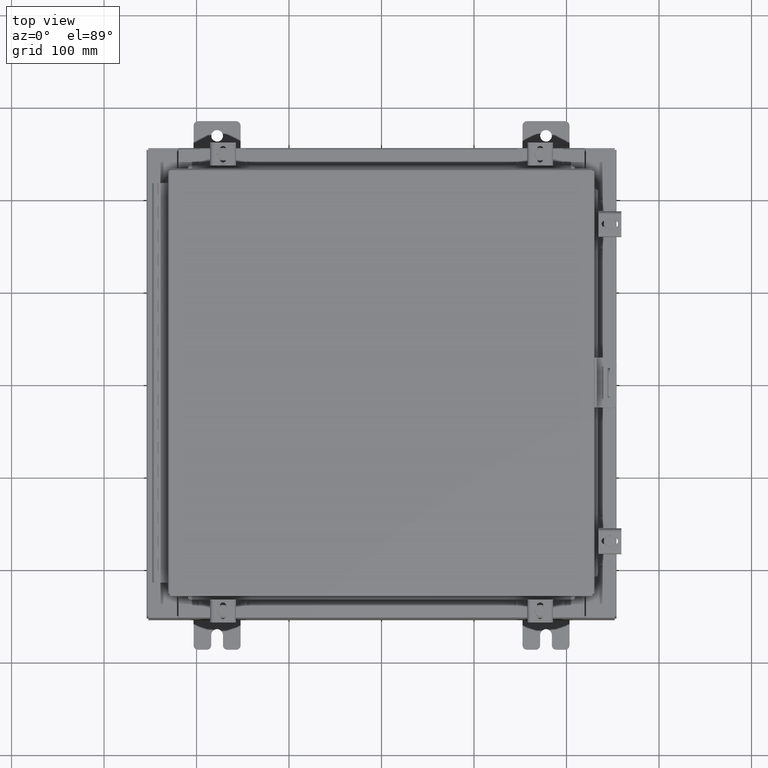
[diagram: clean part render]
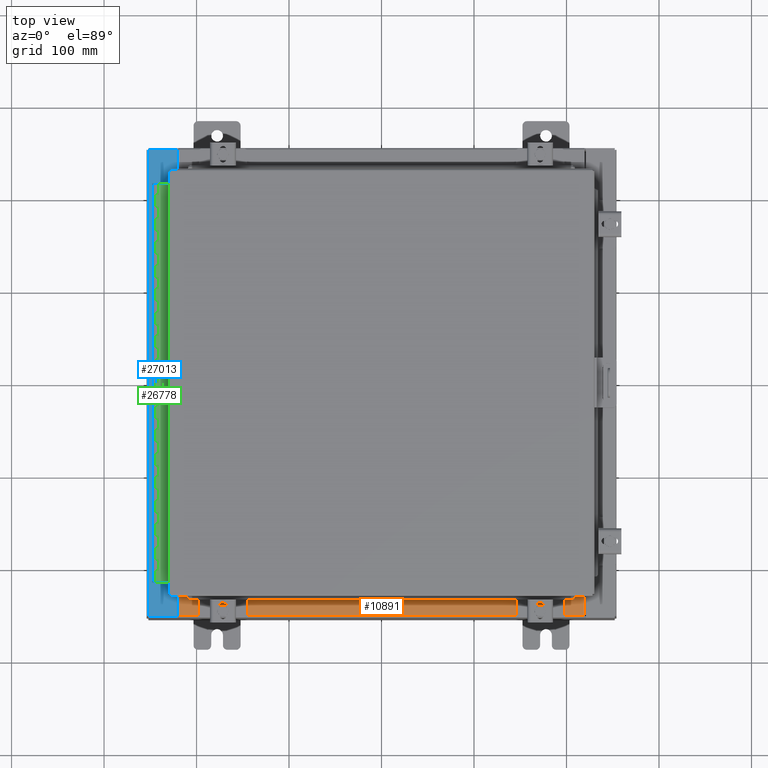
[diagram: same view with three faces highlighted in distinct colors, each labeled with its STEP entity id]
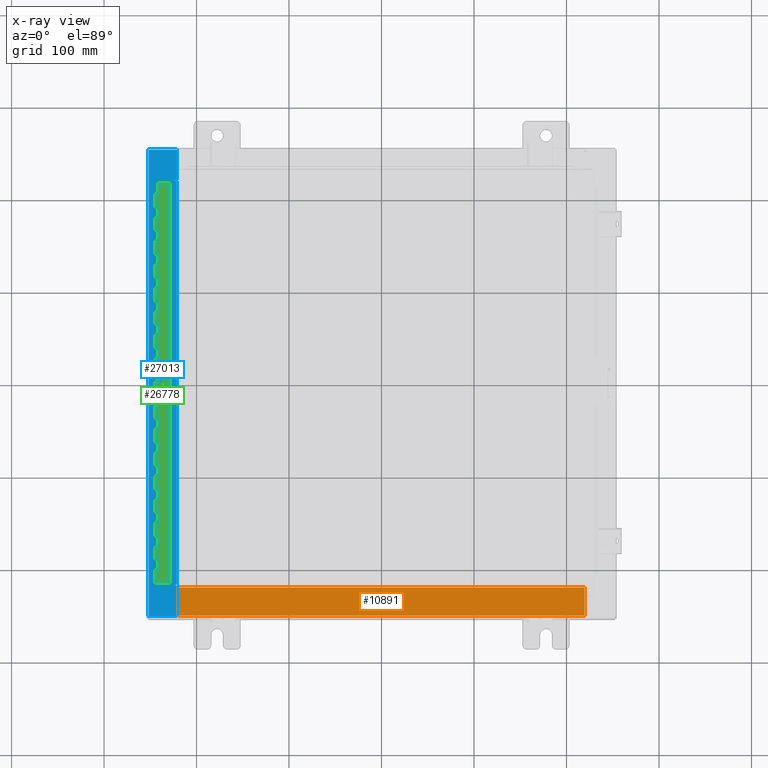
[diagram: x-ray of the same camera — body ghosted, the three highlighted faces saturated]
A machine part, top view with three faces highlighted in distinct colors.
The next image is the same camera in x-ray (body ghosted, the three faces saturated) — at least one of them is partly hidden behind the body in this view.
Their STEP definitions:

[orange] entity #10891 — the highlighted planar face has unit normal (-0, -0, 1).
#488 = CARTESIAN_POINT ( 'NONE',  ( 8.637200000000000000, -1.300299999999999800, 3.000000000000005300 ) ) ;
#3153 = CARTESIAN_POINT ( 'NONE',  ( -8.637200000000000000, -0.07469999999999973900, 3.000000000000000900 ) ) ;
#3319 = VECTOR ( 'NONE', #21054, 39.37007874015748100 ) ;
#3874 = ORIENTED_EDGE ( 'NONE', *, *, #10393, .F. ) ;
#3950 = EDGE_CURVE ( 'NONE', #11097, #27182, #11611, .T. ) ;
#4037 = LINE ( 'NONE', #9670, #3319 ) ;
#4848 = EDGE_CURVE ( 'NONE', #21313, #29233, #9080, .T. ) ;
#4921 = LINE ( 'NONE', #24121, #28433 ) ;
#6597 = EDGE_CURVE ( 'NONE', #21313, #27182, #4037, .T. ) ;
#6669 = ORIENTED_EDGE ( 'NONE', *, *, #3950, .F. ) ;
#6844 = EDGE_LOOP ( 'NONE', ( #6669, #3874, #14587, #9004 ) ) ;
#8499 = CARTESIAN_POINT ( 'NONE',  ( 8.637200000000000000, -1.287299999999999900, 3.000000000000005300 ) ) ;
#9004 = ORIENTED_EDGE ( 'NONE', *, *, #6597, .T. ) ;
#9080 = LINE ( 'NONE', #488, #20524 ) ;
#9670 = CARTESIAN_POINT ( 'NONE',  ( -2.773851121247453900E-018, -0.08770000000000000000, 3.000000000000001300 ) ) ;
#10393 = EDGE_CURVE ( 'NONE', #29233, #11097, #4921, .T. ) ;
#10891 = ADVANCED_FACE ( 'NONE', ( #12158 ), #26395, .T. ) ;
#11004 = CARTESIAN_POINT ( 'NONE',  ( -8.637200000000000000, -1.287299999999999200, 3.000000000000005300 ) ) ;
#11097 = VERTEX_POINT ( 'NONE', #11004 ) ;
#11611 = LINE ( 'NONE', #3153, #29102 ) ;
#12158 = FACE_OUTER_BOUND ( 'NONE', #6844, .T. ) ;
#12718 = DIRECTION ( 'NONE',  ( 0.0000000000000000000, 3.566381192773190000E-015, 1.000000000000000000 ) ) ;
#14587 = ORIENTED_EDGE ( 'NONE', *, *, #4848, .F. ) ;
#14915 = CARTESIAN_POINT ( 'NONE',  ( 0.0000000000000000000, 1.069354855923099900E-014, 3.000000000000000900 ) ) ;
#15032 = DIRECTION ( 'NONE',  ( -1.000000000000000000, 0.0000000000000000000, 0.0000000000000000000 ) ) ;
#20118 = CARTESIAN_POINT ( 'NONE',  ( 8.637200000000000000, -0.08769999999999965300, 3.000000000000000900 ) ) ;
#20524 = VECTOR ( 'NONE', #23396, 39.37007874015748100 ) ;
#21054 = DIRECTION ( 'NONE',  ( -1.000000000000000000, 3.162886113166609200E-017, -1.128005754888089100E-031 ) ) ;
#21085 = DIRECTION ( 'NONE',  ( -0.0000000000000000000, 1.000000000000000000, -3.566381192773190000E-015 ) ) ;
#21313 = VERTEX_POINT ( 'NONE', #20118 ) ;
#22598 = AXIS2_PLACEMENT_3D ( 'NONE', #14915, #12718, #28661 ) ;
#23396 = DIRECTION ( 'NONE',  ( -0.0000000000000000000, -1.000000000000000000, 3.566381192773190000E-015 ) ) ;
#24121 = CARTESIAN_POINT ( 'NONE',  ( 8.637200000000000000, -1.287299999999999900, 3.000000000000005300 ) ) ;
#26395 = PLANE ( 'NONE',  #22598 ) ;
#27182 = VERTEX_POINT ( 'NONE', #27910 ) ;
#27910 = CARTESIAN_POINT ( 'NONE',  ( -8.637200000000000000, -0.08770000000000000000, 3.000000000000000900 ) ) ;
#28433 = VECTOR ( 'NONE', #15032, 39.37007874015748100 ) ;
#28661 = DIRECTION ( 'NONE',  ( 0.0000000000000000000, -1.000000000000000000, 3.566381192773190000E-015 ) ) ;
#29102 = VECTOR ( 'NONE', #21085, 39.37007874015748100 ) ;
#29233 = VERTEX_POINT ( 'NONE', #8499 ) ;

[blue] entity #27013 — the highlighted planar face has unit normal (0, -0, -1).
#164 = LINE ( 'NONE', #26480, #16898 ) ;
#227 = CARTESIAN_POINT ( 'NONE',  ( -8.750050000000023000, 8.631099999999998200, 5.925300000000007100 ) ) ;
#739 = DIRECTION ( 'NONE',  ( -1.000000000000000000, -2.170286390199908100E-014, -2.170286390199908100E-014 ) ) ;
#1042 = ORIENTED_EDGE ( 'NONE', *, *, #2226, .T. ) ;
#1733 = CIRCLE ( 'NONE', #18416, 0.01867499999999949400 ) ;
#1936 = CARTESIAN_POINT ( 'NONE',  ( -8.712700000000021200, 8.593749999999998200, 5.925300000000007100 ) ) ;
#1982 = CARTESIAN_POINT ( 'NONE',  ( -9.912300000000019700, 9.925300000000000000, 5.925299999999999100 ) ) ;
#2073 = DIRECTION ( 'NONE',  ( -7.132762385546365800E-015, 5.504816970095138400E-017, 1.000000000000000000 ) ) ;
#2126 = CARTESIAN_POINT ( 'NONE',  ( -8.699700000000019500, 9.925299999999998200, 5.925300000000008000 ) ) ;
#2226 = EDGE_CURVE ( 'NONE', #9636, #21795, #164, .T. ) ;
#2290 = VECTOR ( 'NONE', #5651, 39.37007874015748100 ) ;
#2324 = CARTESIAN_POINT ( 'NONE',  ( -8.750050000000023000, -8.593750000000008900, 5.925300000000008000 ) ) ;
#2599 = ORIENTED_EDGE ( 'NONE', *, *, #22726, .F. ) ;
#2860 = VECTOR ( 'NONE', #13137, 39.37007874015748100 ) ;
#2977 = VECTOR ( 'NONE', #10549, 39.37007874015748100 ) ;
#3092 = VECTOR ( 'NONE', #24717, 39.37007874015748100 ) ;
#3192 = EDGE_CURVE ( 'NONE', #21795, #22593, #9013, .T. ) ;
#4017 = EDGE_CURVE ( 'NONE', #11386, #24587, #17701, .T. ) ;
#4537 = CARTESIAN_POINT ( 'NONE',  ( -4.252457061908996300E-014, 3.261769199290511000E-016, 5.925300000000070200 ) ) ;
#5270 = EDGE_CURVE ( 'NONE', #9636, #18449, #12641, .T. ) ;
#5651 = DIRECTION ( 'NONE',  ( 1.000000000000000000, -2.170286390199814100E-014, 2.170286390199814100E-014 ) ) ;
#6756 = ORIENTED_EDGE ( 'NONE', *, *, #13893, .F. ) ;
#6827 = DIRECTION ( 'NONE',  ( -1.000000000000000000, 0.0000000000000000000, -7.132762385546365800E-015 ) ) ;
#9013 = LINE ( 'NONE', #28009, #2977 ) ;
#9308 = EDGE_LOOP ( 'NONE', ( #9552, #1042, #15651, #24405, #28764, #28835, #20356, #22474, #14625, #6756, #2599, #23002 ) ) ;
#9552 = ORIENTED_EDGE ( 'NONE', *, *, #5270, .F. ) ;
#9636 = VERTEX_POINT ( 'NONE', #18118 ) ;
#10154 = VECTOR ( 'NONE', #26117, 39.37007874015748100 ) ;
#10422 = LINE ( 'NONE', #13117, #21860 ) ;
#10549 = DIRECTION ( 'NONE',  ( -1.000000000000000000, 3.566381192773190000E-015, -7.132762385546365800E-015 ) ) ;
#11321 = CARTESIAN_POINT ( 'NONE',  ( -8.699700000000017800, -9.925300000000005300, 5.925300000000008000 ) ) ;
#11386 = VERTEX_POINT ( 'NONE', #12216 ) ;
#11537 = CARTESIAN_POINT ( 'NONE',  ( -8.750050000000023000, 8.612424999999998200, 5.925300000000007100 ) ) ;
#11807 = VERTEX_POINT ( 'NONE', #2324 ) ;
#12178 = CARTESIAN_POINT ( 'NONE',  ( -8.712700000000021200, -8.593750000000008900, 5.925300000000007100 ) ) ;
#12216 = CARTESIAN_POINT ( 'NONE',  ( -9.912300000000019700, -9.925299999999992900, 5.925299999999999100 ) ) ;
#12445 = CARTESIAN_POINT ( 'NONE',  ( -8.750050000000023000, 8.593749999999998200, 5.925300000000007100 ) ) ;
#12641 = LINE ( 'NONE', #14683, #17993 ) ;
#12784 = VERTEX_POINT ( 'NONE', #1936 ) ;
#13117 = CARTESIAN_POINT ( 'NONE',  ( -8.699700000000019500, -6.316282039656831500E-016, 5.925300000000008000 ) ) ;
#13137 = DIRECTION ( 'NONE',  ( -0.0000000000000000000, 1.000000000000000000, -5.504816970095139000E-017 ) ) ;
#13833 = DIRECTION ( 'NONE',  ( 1.000000000000000000, 0.0000000000000000000, 0.0000000000000000000 ) ) ;
#13893 = EDGE_CURVE ( 'NONE', #12784, #26984, #21980, .T. ) ;
#14048 = CARTESIAN_POINT ( 'NONE',  ( -8.699700000000017800, -8.631100000000007100, 5.925300000000008000 ) ) ;
#14625 = ORIENTED_EDGE ( 'NONE', *, *, #15754, .F. ) ;
#14683 = CARTESIAN_POINT ( 'NONE',  ( -8.699700000000019500, 8.631100000000000000, 5.925300000000008000 ) ) ;
#14948 = EDGE_CURVE ( 'NONE', #23488, #20281, #19783, .T. ) ;
#15651 = ORIENTED_EDGE ( 'NONE', *, *, #3192, .T. ) ;
#15713 = CARTESIAN_POINT ( 'NONE',  ( -8.750050000000023000, -8.612425000000007100, 5.925300000000007100 ) ) ;
#15754 = EDGE_CURVE ( 'NONE', #26984, #11807, #22579, .T. ) ;
#16226 = LINE ( 'NONE', #12445, #10154 ) ;
#16493 = VECTOR ( 'NONE', #21370, 39.37007874015748100 ) ;
#16898 = VECTOR ( 'NONE', #19743, 39.37007874015748100 ) ;
#17424 = VERTEX_POINT ( 'NONE', #18378 ) ;
#17701 = LINE ( 'NONE', #18288, #22338 ) ;
#17875 = EDGE_CURVE ( 'NONE', #18449, #17424, #20062, .T. ) ;
#17993 = VECTOR ( 'NONE', #739, 39.37007874015748100 ) ;
#18028 = DIRECTION ( 'NONE',  ( 1.000000000000000000, 0.0000000000000000000, 0.0000000000000000000 ) ) ;
#18118 = CARTESIAN_POINT ( 'NONE',  ( -8.699700000000019500, 8.631100000000000000, 5.925300000000008000 ) ) ;
#18165 = PLANE ( 'NONE',  #18561 ) ;
#18288 = CARTESIAN_POINT ( 'NONE',  ( -1.310180787506698800E-013, -9.925300000000083500, 5.925300000000070200 ) ) ;
#18378 = CARTESIAN_POINT ( 'NONE',  ( -8.750050000000023000, 8.593749999999998200, 5.925300000000008000 ) ) ;
#18416 = AXIS2_PLACEMENT_3D ( 'NONE', #15713, #2073, #18028 ) ;
#18449 = VERTEX_POINT ( 'NONE', #227 ) ;
#18561 = AXIS2_PLACEMENT_3D ( 'NONE', #4537, #20481, #6827 ) ;
#18593 = DIRECTION ( 'NONE',  ( 1.000000000000000000, -8.915952981932958000E-015, 7.132762385546365800E-015 ) ) ;
#19282 = CARTESIAN_POINT ( 'NONE',  ( -8.750050000000023000, -8.631100000000008900, 5.925300000000007100 ) ) ;
#19743 = DIRECTION ( 'NONE',  ( -1.100963394019027400E-016, 1.000000000000000000, -5.504816970095217300E-017 ) ) ;
#19759 = FACE_OUTER_BOUND ( 'NONE', #9308, .T. ) ;
#19783 = LINE ( 'NONE', #19282, #2290 ) ;
#19937 = DIRECTION ( 'NONE',  ( -1.100963394019027400E-016, 1.000000000000000000, -5.504816970095217300E-017 ) ) ;
#20062 = CIRCLE ( 'NONE', #27141, 0.01867499999999949400 ) ;
#20281 = VERTEX_POINT ( 'NONE', #14048 ) ;
#20356 = ORIENTED_EDGE ( 'NONE', *, *, #14948, .F. ) ;
#20388 = CARTESIAN_POINT ( 'NONE',  ( -8.712700000000021200, -8.593750000000008900, 5.925300000000007100 ) ) ;
#20481 = DIRECTION ( 'NONE',  ( 7.132762385546365800E-015, -5.504816970095137800E-017, -1.000000000000000000 ) ) ;
#20740 = EDGE_CURVE ( 'NONE', #11807, #23488, #1733, .T. ) ;
#21034 = CARTESIAN_POINT ( 'NONE',  ( -9.912300000000019700, 9.925300000000001800, 5.925299999999999100 ) ) ;
#21052 = LINE ( 'NONE', #1982, #2860 ) ;
#21370 = DIRECTION ( 'NONE',  ( -1.000000000000000000, 0.0000000000000000000, 0.0000000000000000000 ) ) ;
#21795 = VERTEX_POINT ( 'NONE', #2126 ) ;
#21860 = VECTOR ( 'NONE', #19937, 39.37007874015748100 ) ;
#21980 = LINE ( 'NONE', #29181, #3092 ) ;
#22338 = VECTOR ( 'NONE', #18593, 39.37007874015748100 ) ;
#22474 = ORIENTED_EDGE ( 'NONE', *, *, #20740, .F. ) ;
#22579 = LINE ( 'NONE', #12178, #16493 ) ;
#22593 = VERTEX_POINT ( 'NONE', #21034 ) ;
#22726 = EDGE_CURVE ( 'NONE', #17424, #12784, #16226, .T. ) ;
#23002 = ORIENTED_EDGE ( 'NONE', *, *, #17875, .F. ) ;
#23488 = VERTEX_POINT ( 'NONE', #28547 ) ;
#24405 = ORIENTED_EDGE ( 'NONE', *, *, #29332, .F. ) ;
#24480 = EDGE_CURVE ( 'NONE', #24587, #20281, #10422, .T. ) ;
#24587 = VERTEX_POINT ( 'NONE', #11321 ) ;
#24717 = DIRECTION ( 'NONE',  ( -0.0000000000000000000, -1.000000000000000000, -0.0000000000000000000 ) ) ;
#26117 = DIRECTION ( 'NONE',  ( 1.000000000000000000, 0.0000000000000000000, 0.0000000000000000000 ) ) ;
#26480 = CARTESIAN_POINT ( 'NONE',  ( -8.699700000000019500, -6.316282039656831500E-016, 5.925300000000008000 ) ) ;
#26984 = VERTEX_POINT ( 'NONE', #20388 ) ;
#27013 = ADVANCED_FACE ( 'NONE', ( #19759 ), #18165, .F. ) ;
#27141 = AXIS2_PLACEMENT_3D ( 'NONE', #11537, #27505, #13833 ) ;
#27505 = DIRECTION ( 'NONE',  ( -7.132762385546365800E-015, 5.504816970095138400E-017, 1.000000000000000000 ) ) ;
#28009 = CARTESIAN_POINT ( 'NONE',  ( -7.127167366458332300E-015, 9.925299999999968000, 5.925300000000070200 ) ) ;
#28547 = CARTESIAN_POINT ( 'NONE',  ( -8.750050000000023000, -8.631100000000008900, 5.925300000000008000 ) ) ;
#28764 = ORIENTED_EDGE ( 'NONE', *, *, #4017, .T. ) ;
#28835 = ORIENTED_EDGE ( 'NONE', *, *, #24480, .T. ) ;
#29181 = CARTESIAN_POINT ( 'NONE',  ( -8.712700000000021200, 8.593750000000000000, 5.925300000000007100 ) ) ;
#29332 = EDGE_CURVE ( 'NONE', #11386, #22593, #21052, .T. ) ;

[green] entity #26778 — the highlighted planar face has unit normal (-0, -0, 1).
#84 = VERTEX_POINT ( 'NONE', #28758 ) ;
#103 = CARTESIAN_POINT ( 'NONE',  ( -0.6869999999999978300, 0.6754999999999996600, -9.500000000000000000 ) ) ;
#297 = EDGE_CURVE ( 'NONE', #5577, #28135, #9525, .T. ) ;
#401 = CARTESIAN_POINT ( 'NONE',  ( -0.6869999999999978300, 0.6754999999999996600, -17.00000000000000000 ) ) ;
#427 = VECTOR ( 'NONE', #2697, 39.37007874015748100 ) ;
#496 = CARTESIAN_POINT ( 'NONE',  ( -0.6869999999999982800, 0.5504999999999997700, -7.499999999999999100 ) ) ;
#637 = CARTESIAN_POINT ( 'NONE',  ( -0.6869999999999982800, 0.5504999999999997700, -5.500000000000000000 ) ) ;
#699 = DIRECTION ( 'NONE',  ( -3.389037039080723100E-015, -1.000000000000000000, 0.0000000000000000000 ) ) ;
#734 = VERTEX_POINT ( 'NONE', #26628 ) ;
#783 = CARTESIAN_POINT ( 'NONE',  ( -0.6869999999999982800, 0.5504999999999997700, -15.50000000000000000 ) ) ;
#803 = LINE ( 'NONE', #19664, #19008 ) ;
#1025 = VERTEX_POINT ( 'NONE', #24425 ) ;
#1077 = VERTEX_POINT ( 'NONE', #9216 ) ;
#1113 = CARTESIAN_POINT ( 'NONE',  ( -0.6869999999999982800, 0.5504999999999997700, -10.00000000000000000 ) ) ;
#1146 = LINE ( 'NONE', #7616, #11834 ) ;
#1147 = LINE ( 'NONE', #4514, #12569 ) ;
#1201 = VECTOR ( 'NONE', #20973, 39.37007874015748100 ) ;
#1321 = CARTESIAN_POINT ( 'NONE',  ( -0.6869999999999978300, 0.6754999999999996600, -17.00000000000000000 ) ) ;
#1389 = VERTEX_POINT ( 'NONE', #4535 ) ;
#1401 = VECTOR ( 'NONE', #28577, 39.37007874015748100 ) ;
#1420 = CARTESIAN_POINT ( 'NONE',  ( -0.6869999999999978300, 0.6754999999999996600, -17.00000000000000000 ) ) ;
#1441 = VERTEX_POINT ( 'NONE', #4993 ) ;
#1448 = VERTEX_POINT ( 'NONE', #18258 ) ;
#1739 = DIRECTION ( 'NONE',  ( 3.389037039080723100E-015, 1.000000000000000000, -0.0000000000000000000 ) ) ;
#1740 = VECTOR ( 'NONE', #26055, 39.37007874015748100 ) ;
#1785 = ORIENTED_EDGE ( 'NONE', *, *, #4335, .F. ) ;
#1836 = LINE ( 'NONE', #7193, #12549 ) ;
#1875 = LINE ( 'NONE', #1420, #24722 ) ;
#1947 = LINE ( 'NONE', #9207, #8043 ) ;
#2027 = VECTOR ( 'NONE', #9428, 39.37007874015748100 ) ;
#2064 = EDGE_CURVE ( 'NONE', #14499, #27427, #20506, .T. ) ;
#2170 = VECTOR ( 'NONE', #27767, 39.37007874015748100 ) ;
#2200 = VECTOR ( 'NONE', #6166, 39.37007874015748100 ) ;
#2326 = DIRECTION ( 'NONE',  ( 0.0000000000000000000, 0.0000000000000000000, 1.000000000000000000 ) ) ;
#2412 = CARTESIAN_POINT ( 'NONE',  ( -0.6869999999999982800, 0.5504999999999997700, -11.00000000000000000 ) ) ;
#2672 = LINE ( 'NONE', #7876, #25497 ) ;
#2697 = DIRECTION ( 'NONE',  ( 0.0000000000000000000, 0.0000000000000000000, 1.000000000000000000 ) ) ;
#2741 = EDGE_CURVE ( 'NONE', #16984, #11787, #24392, .T. ) ;
#2781 = CARTESIAN_POINT ( 'NONE',  ( -0.6869999999999973900, 0.8004999999999995500, -12.99999999999999800 ) ) ;
#2788 = LINE ( 'NONE', #783, #14175 ) ;
#2827 = ORIENTED_EDGE ( 'NONE', *, *, #15029, .T. ) ;
#2869 = ORIENTED_EDGE ( 'NONE', *, *, #15930, .F. ) ;
#2903 = VECTOR ( 'NONE', #699, 39.37007874015748100 ) ;
#2908 = VECTOR ( 'NONE', #19716, 39.37007874015748100 ) ;
#2930 = ORIENTED_EDGE ( 'NONE', *, *, #11320, .F. ) ;
#2954 = VERTEX_POINT ( 'NONE', #20094 ) ;
#3053 = CARTESIAN_POINT ( 'NONE',  ( -0.6869999999999982800, 0.5504999999999997700, -13.50000000000000000 ) ) ;
#3069 = DIRECTION ( 'NONE',  ( 3.369016658928398200E-015, 1.000000000000000000, 0.0000000000000000000 ) ) ;
#3140 = CARTESIAN_POINT ( 'NONE',  ( -0.6869999999999973900, 0.8004999999999995500, -13.50000000000000000 ) ) ;
#3159 = VERTEX_POINT ( 'NONE', #24248 ) ;
#3165 = VERTEX_POINT ( 'NONE', #12765 ) ;
#3248 = DIRECTION ( 'NONE',  ( -3.389037039080723100E-015, -1.000000000000000000, 0.0000000000000000000 ) ) ;
#3331 = EDGE_CURVE ( 'NONE', #28611, #8871, #4747, .T. ) ;
#3347 = ORIENTED_EDGE ( 'NONE', *, *, #15076, .T. ) ;
#3354 = VERTEX_POINT ( 'NONE', #9289 ) ;
#3388 = VECTOR ( 'NONE', #3951, 39.37007874015748100 ) ;
#3449 = CARTESIAN_POINT ( 'NONE',  ( -0.6869999999999978300, 0.6754999999999996600, -5.000000000000000000 ) ) ;
#3452 = VECTOR ( 'NONE', #7376, 39.37007874015748100 ) ;
#3521 = EDGE_CURVE ( 'NONE', #19443, #9900, #5828, .T. ) ;
#3522 = EDGE_CURVE ( 'NONE', #23034, #16984, #1146, .T. ) ;
#3565 = CARTESIAN_POINT ( 'NONE',  ( -0.6869999999999978300, 0.6754999999999996600, -6.499999999999999100 ) ) ;
#3632 = EDGE_CURVE ( 'NONE', #27115, #1389, #25758, .T. ) ;
#3703 = CARTESIAN_POINT ( 'NONE',  ( -0.6869999999999973900, 0.8004999999999995500, -5.000000000000000000 ) ) ;
#3737 = VECTOR ( 'NONE', #14689, 39.37007874015748100 ) ;
#3757 = CARTESIAN_POINT ( 'NONE',  ( -0.6869999999999973900, 0.8004999999999995500, -6.000000000000000900 ) ) ;
#3794 = VECTOR ( 'NONE', #26394, 39.37007874015748100 ) ;
#3834 = VERTEX_POINT ( 'NONE', #3053 ) ;
#3951 = DIRECTION ( 'NONE',  ( 0.0000000000000000000, -0.0000000000000000000, -1.000000000000000000 ) ) ;
#3960 = VECTOR ( 'NONE', #17773, 39.37007874015748100 ) ;
#4122 = VERTEX_POINT ( 'NONE', #3565 ) ;
#4140 = CARTESIAN_POINT ( 'NONE',  ( -0.6869999999999978300, 0.6754999999999996600, -17.00000000000000000 ) ) ;
#4237 = DIRECTION ( 'NONE',  ( -3.389037039080723100E-015, -1.000000000000000000, 0.0000000000000000000 ) ) ;
#4335 = EDGE_CURVE ( 'NONE', #14807, #25615, #20552, .T. ) ;
#4349 = LINE ( 'NONE', #27997, #2903 ) ;
#4357 = LINE ( 'NONE', #20914, #27853 ) ;
#4447 = VECTOR ( 'NONE', #6815, 39.37007874015748100 ) ;
#4514 = CARTESIAN_POINT ( 'NONE',  ( -0.6870000000000022800, -0.6245000000000003900, 0.0000000000000000000 ) ) ;
#4518 = DIRECTION ( 'NONE',  ( 3.389037039080723100E-015, 1.000000000000000000, -0.0000000000000000000 ) ) ;
#4535 = CARTESIAN_POINT ( 'NONE',  ( -0.6869999999999982800, 0.5504999999999997700, -12.99999999999999800 ) ) ;
#4547 = CARTESIAN_POINT ( 'NONE',  ( -0.6869999999999978300, 0.6754999999999996600, -9.000000000000000000 ) ) ;
#4550 = CARTESIAN_POINT ( 'NONE',  ( -0.6869999999999978300, 0.6754999999999996600, -4.000000000000000000 ) ) ;
#4589 = EDGE_CURVE ( 'NONE', #24565, #6882, #20896, .T. ) ;
#4607 = VECTOR ( 'NONE', #4518, 39.37007874015748100 ) ;
#4658 = VERTEX_POINT ( 'NONE', #17109 ) ;
#4674 = ORIENTED_EDGE ( 'NONE', *, *, #15103, .T. ) ;
#4701 = EDGE_LOOP ( 'NONE', ( #25370, #8373, #25457, #26267, #24872, #27402, #23515, #9966, #19365, #10207, #22431, #17558, #4674, #20382, #2869, #14359, #21965, #7911, #28463, #25304, #9434, #9365, #23418, #6047, #21062, #29229, #9984, #12794, #3347, #23735, #1785, #6412, #20315, #8440, #18709, #24486, #19212, #23940, #13517, #11047, #7309, #22564, #19454, #9005, #2827, #9924, #15237, #22972, #19491, #8850, #17160, #9245, #11446, #26633, #23619, #21229, #15425, #21365, #22408, #24893, #11880, #26616, #17054, #2930, #16361, #23942, #23031, #25080, #10113, #28039 ) ) ;
#4703 = CARTESIAN_POINT ( 'NONE',  ( -0.6869999999999982800, 0.5504999999999997700, -14.49999999999999800 ) ) ;
#4726 = LINE ( 'NONE', #13277, #28234 ) ;
#4747 = LINE ( 'NONE', #6831, #10049 ) ;
#4780 = VERTEX_POINT ( 'NONE', #18789 ) ;
#4789 = CARTESIAN_POINT ( 'NONE',  ( -0.6869999999999982800, 0.5504999999999997700, -11.50000000000000000 ) ) ;
#4851 = CARTESIAN_POINT ( 'NONE',  ( -0.6869999999999978300, 0.6754999999999996600, -0.5000000000000000000 ) ) ;
#4993 = CARTESIAN_POINT ( 'NONE',  ( -0.6869999999999982800, 0.5504999999999997700, -0.5000000000000000000 ) ) ;
#5069 = CARTESIAN_POINT ( 'NONE',  ( -0.6869999999999973900, 0.8004999999999995500, -16.50000000000000000 ) ) ;
#5142 = VERTEX_POINT ( 'NONE', #22263 ) ;
#5369 = DIRECTION ( 'NONE',  ( 0.0000000000000000000, -0.0000000000000000000, -1.000000000000000000 ) ) ;
#5424 = VECTOR ( 'NONE', #24195, 39.37007874015748100 ) ;
#5440 = LINE ( 'NONE', #17524, #28211 ) ;
#5442 = CARTESIAN_POINT ( 'NONE',  ( -0.6869999999999973900, 0.8004999999999995500, -14.00000000000000000 ) ) ;
#5444 = VERTEX_POINT ( 'NONE', #24806 ) ;
#5577 = VERTEX_POINT ( 'NONE', #18415 ) ;
#5590 = LINE ( 'NONE', #14317, #29078 ) ;
#5732 = VERTEX_POINT ( 'NONE', #8836 ) ;
#5828 = LINE ( 'NONE', #23345, #29301 ) ;
#5929 = CARTESIAN_POINT ( 'NONE',  ( -0.6869999999999978300, 0.6754999999999996600, -8.000000000000000000 ) ) ;
#5943 = VECTOR ( 'NONE', #12133, 39.37007874015748100 ) ;
#5987 = CARTESIAN_POINT ( 'NONE',  ( -0.6869999999999978300, 0.6754999999999996600, -6.000000000000000900 ) ) ;
#6047 = ORIENTED_EDGE ( 'NONE', *, *, #8642, .F. ) ;
#6108 = CARTESIAN_POINT ( 'NONE',  ( -0.6869999999999973900, 0.8004999999999995500, -15.50000000000000000 ) ) ;
#6145 = CARTESIAN_POINT ( 'NONE',  ( -0.6869999999999978300, 0.6754999999999996600, -3.500000000000000000 ) ) ;
#6166 = DIRECTION ( 'NONE',  ( 0.0000000000000000000, -0.0000000000000000000, -1.000000000000000000 ) ) ;
#6215 = EDGE_CURVE ( 'NONE', #3165, #23868, #1875, .T. ) ;
#6218 = VECTOR ( 'NONE', #1739, 39.37007874015748100 ) ;
#6412 = ORIENTED_EDGE ( 'NONE', *, *, #17284, .F. ) ;
#6694 = CARTESIAN_POINT ( 'NONE',  ( -0.6869999999999978300, 0.6754999999999996600, -1.499999999999999800 ) ) ;
#6696 = VECTOR ( 'NONE', #15703, 39.37007874015748100 ) ;
#6797 = DIRECTION ( 'NONE',  ( 3.369016658928398200E-015, 1.000000000000000000, 0.0000000000000000000 ) ) ;
#6800 = CARTESIAN_POINT ( 'NONE',  ( -0.6869999999999973900, 0.8004999999999995500, -11.00000000000000000 ) ) ;
#6815 = DIRECTION ( 'NONE',  ( 3.389037039080723100E-015, 1.000000000000000000, -0.0000000000000000000 ) ) ;
#6831 = CARTESIAN_POINT ( 'NONE',  ( -0.6869999999999973900, 0.8004999999999995500, -1.000000000000000000 ) ) ;
#6840 = VECTOR ( 'NONE', #5369, 39.37007874015748100 ) ;
#6882 = VERTEX_POINT ( 'NONE', #29275 ) ;
#6957 = VERTEX_POINT ( 'NONE', #6694 ) ;
#6984 = DIRECTION ( 'NONE',  ( 0.0000000000000000000, -0.0000000000000000000, -1.000000000000000000 ) ) ;
#7000 = LINE ( 'NONE', #3140, #7722 ) ;
#7077 = CARTESIAN_POINT ( 'NONE',  ( -0.6869999999999973900, 0.8004999999999995500, -4.500000000000000000 ) ) ;
#7193 = CARTESIAN_POINT ( 'NONE',  ( -0.6869999999999978300, 0.6754999999999996600, -17.00000000000000000 ) ) ;
#7267 = DIRECTION ( 'NONE',  ( 0.0000000000000000000, 0.0000000000000000000, 1.000000000000000000 ) ) ;
#7270 = VECTOR ( 'NONE', #14256, 39.37007874015748100 ) ;
#7305 = DIRECTION ( 'NONE',  ( 0.0000000000000000000, 0.0000000000000000000, 1.000000000000000000 ) ) ;
#7309 = ORIENTED_EDGE ( 'NONE', *, *, #17918, .T. ) ;
#7359 = DIRECTION ( 'NONE',  ( -3.389037039080723100E-015, -1.000000000000000000, 0.0000000000000000000 ) ) ;
#7376 = DIRECTION ( 'NONE',  ( -3.389037039080723100E-015, -1.000000000000000000, 0.0000000000000000000 ) ) ;
#7465 = CARTESIAN_POINT ( 'NONE',  ( -0.6869999999999973900, 0.8004999999999995500, -1.499999999999999800 ) ) ;
#7616 = CARTESIAN_POINT ( 'NONE',  ( -0.6869999999999982800, 0.5504999999999997700, -3.500000000000000000 ) ) ;
#7685 = DIRECTION ( 'NONE',  ( 0.0000000000000000000, -0.0000000000000000000, -1.000000000000000000 ) ) ;
#7711 = DIRECTION ( 'NONE',  ( 3.389037039080723100E-015, 1.000000000000000000, -0.0000000000000000000 ) ) ;
#7722 = VECTOR ( 'NONE', #19070, 39.37007874015748100 ) ;
#7834 = VECTOR ( 'NONE', #28021, 39.37007874015748100 ) ;
#7876 = CARTESIAN_POINT ( 'NONE',  ( -0.6869999999999973900, 0.8004999999999995500, -11.99999999999999800 ) ) ;
#7911 = ORIENTED_EDGE ( 'NONE', *, *, #27820, .F. ) ;
#8043 = VECTOR ( 'NONE', #25163, 39.37007874015748100 ) ;
#8083 = EDGE_CURVE ( 'NONE', #18164, #5142, #16753, .T. ) ;
#8135 = CARTESIAN_POINT ( 'NONE',  ( -0.6869999999999978300, 0.6754999999999996600, -17.00000000000000000 ) ) ;
#8156 = CARTESIAN_POINT ( 'NONE',  ( -0.6869999999999982800, 0.5504999999999997700, -7.499999999999999100 ) ) ;
#8239 = VECTOR ( 'NONE', #9721, 39.37007874015748100 ) ;
#8244 = DIRECTION ( 'NONE',  ( 0.0000000000000000000, 0.0000000000000000000, 1.000000000000000000 ) ) ;
#8330 = CARTESIAN_POINT ( 'NONE',  ( -0.6869999999999973900, 0.8004999999999995500, -3.500000000000000000 ) ) ;
#8373 = ORIENTED_EDGE ( 'NONE', *, *, #25354, .T. ) ;
#8375 = EDGE_CURVE ( 'NONE', #24565, #27115, #19612, .T. ) ;
#8376 = CARTESIAN_POINT ( 'NONE',  ( -0.6869999999999978300, 0.6754999999999996600, -11.50000000000000000 ) ) ;
#8435 = VECTOR ( 'NONE', #24318, 39.37007874015748100 ) ;
#8440 = ORIENTED_EDGE ( 'NONE', *, *, #9763, .F. ) ;
#8611 = CARTESIAN_POINT ( 'NONE',  ( -0.6869999999999978300, 0.6754999999999996600, -17.00000000000000000 ) ) ;
#8642 = EDGE_CURVE ( 'NONE', #26356, #20854, #14582, .T. ) ;
#8760 = VECTOR ( 'NONE', #7305, 39.37007874015748100 ) ;
#8769 = VECTOR ( 'NONE', #9541, 39.37007874015748100 ) ;
#8786 = DIRECTION ( 'NONE',  ( 0.0000000000000000000, -0.0000000000000000000, -1.000000000000000000 ) ) ;
#8836 = CARTESIAN_POINT ( 'NONE',  ( -0.6869999999999978300, 0.6754999999999996600, -10.00000000000000000 ) ) ;
#8850 = ORIENTED_EDGE ( 'NONE', *, *, #26329, .F. ) ;
#8857 = CARTESIAN_POINT ( 'NONE',  ( -0.6869999999999978300, 0.6754999999999996600, -12.49999999999999800 ) ) ;
#8871 = VERTEX_POINT ( 'NONE', #19670 ) ;
#8953 = LINE ( 'NONE', #17417, #2908 ) ;
#9005 = ORIENTED_EDGE ( 'NONE', *, *, #14172, .F. ) ;
#9207 = CARTESIAN_POINT ( 'NONE',  ( -0.6869999999999973900, 0.8004999999999995500, -14.99999999999999800 ) ) ;
#9216 = CARTESIAN_POINT ( 'NONE',  ( -0.6869999999999982800, 0.5504999999999997700, -5.500000000000000000 ) ) ;
#9245 = ORIENTED_EDGE ( 'NONE', *, *, #14157, .F. ) ;
#9281 = LINE ( 'NONE', #6108, #15336 ) ;
#9289 = CARTESIAN_POINT ( 'NONE',  ( -0.6869999999999982800, 0.5504999999999997700, -2.500000000000000000 ) ) ;
#9293 = CARTESIAN_POINT ( 'NONE',  ( -0.6870000000000022800, -0.6245000000000003900, -17.00000000000000000 ) ) ;
#9309 = EDGE_CURVE ( 'NONE', #15996, #19443, #2788, .T. ) ;
#9337 = VERTEX_POINT ( 'NONE', #14533 ) ;
#9365 = ORIENTED_EDGE ( 'NONE', *, *, #26247, .F. ) ;
#9415 = LINE ( 'NONE', #15266, #27601 ) ;
#9428 = DIRECTION ( 'NONE',  ( 0.0000000000000000000, 0.0000000000000000000, 1.000000000000000000 ) ) ;
#9434 = ORIENTED_EDGE ( 'NONE', *, *, #4589, .T. ) ;
#9437 = CARTESIAN_POINT ( 'NONE',  ( -0.6869999999999973900, 0.8004999999999995500, -9.000000000000000000 ) ) ;
#9495 = VERTEX_POINT ( 'NONE', #28784 ) ;
#9525 = LINE ( 'NONE', #3757, #21672 ) ;
#9541 = DIRECTION ( 'NONE',  ( -3.389037039080723100E-015, -1.000000000000000000, 0.0000000000000000000 ) ) ;
#9721 = DIRECTION ( 'NONE',  ( -3.389037039080723100E-015, -1.000000000000000000, 0.0000000000000000000 ) ) ;
#9763 = EDGE_CURVE ( 'NONE', #23973, #21810, #17027, .T. ) ;
#9781 = CARTESIAN_POINT ( 'NONE',  ( -0.6869999999999973900, 0.8004999999999995500, -11.50000000000000000 ) ) ;
#9900 = VERTEX_POINT ( 'NONE', #24644 ) ;
#9917 = CARTESIAN_POINT ( 'NONE',  ( -0.6869999999999982800, 0.5504999999999997700, -4.000000000000000000 ) ) ;
#9924 = ORIENTED_EDGE ( 'NONE', *, *, #297, .F. ) ;
#9966 = ORIENTED_EDGE ( 'NONE', *, *, #18842, .F. ) ;
#9984 = ORIENTED_EDGE ( 'NONE', *, *, #10570, .F. ) ;
#9995 = CARTESIAN_POINT ( 'NONE',  ( -0.6869999999999973900, 0.8004999999999995500, -0.5000000000000000000 ) ) ;
#10049 = VECTOR ( 'NONE', #24137, 39.37007874015748100 ) ;
#10105 = LINE ( 'NONE', #12877, #28317 ) ;
#10113 = ORIENTED_EDGE ( 'NONE', *, *, #17407, .T. ) ;
#10207 = ORIENTED_EDGE ( 'NONE', *, *, #14736, .F. ) ;
#10285 = DIRECTION ( 'NONE',  ( 0.0000000000000000000, -0.0000000000000000000, -1.000000000000000000 ) ) ;
#10322 = CARTESIAN_POINT ( 'NONE',  ( -0.6869999999999973900, 0.8004999999999995500, -12.49999999999999800 ) ) ;
#10325 = CARTESIAN_POINT ( 'NONE',  ( -0.6869999999999998300, 0.07549999999999991400, 0.0000000000000000000 ) ) ;
#10402 = VECTOR ( 'NONE', #27783, 39.37007874015748100 ) ;
#10473 = DIRECTION ( 'NONE',  ( 0.0000000000000000000, 0.0000000000000000000, 1.000000000000000000 ) ) ;
#10570 = EDGE_CURVE ( 'NONE', #25337, #23802, #12735, .T. ) ;
#10591 = VERTEX_POINT ( 'NONE', #11218 ) ;
#10622 = LINE ( 'NONE', #6800, #4607 ) ;
#10672 = LINE ( 'NONE', #4140, #3960 ) ;
#10680 = LINE ( 'NONE', #5442, #28171 ) ;
#10699 = CARTESIAN_POINT ( 'NONE',  ( -0.6869999999999978300, 0.6754999999999996600, -8.500000000000000000 ) ) ;
#10734 = EDGE_CURVE ( 'NONE', #13208, #26582, #4357, .T. ) ;
#10781 = EDGE_CURVE ( 'NONE', #13593, #2954, #14287, .T. ) ;
#10826 = VECTOR ( 'NONE', #10473, 39.37007874015748100 ) ;
#10888 = LINE ( 'NONE', #7077, #8769 ) ;
#10899 = EDGE_CURVE ( 'NONE', #21700, #24899, #17516, .T. ) ;
#10932 = CARTESIAN_POINT ( 'NONE',  ( -0.6869999999999973900, 0.8004999999999995500, -4.000000000000000000 ) ) ;
#11047 = ORIENTED_EDGE ( 'NONE', *, *, #18569, .F. ) ;
#11204 = LINE ( 'NONE', #3703, #28686 ) ;
#11218 = CARTESIAN_POINT ( 'NONE',  ( -0.6869999999999982800, 0.5504999999999997700, -5.000000000000000000 ) ) ;
#11229 = LINE ( 'NONE', #8156, #3794 ) ;
#11295 = VERTEX_POINT ( 'NONE', #4851 ) ;
#11320 = EDGE_CURVE ( 'NONE', #6957, #21700, #27824, .T. ) ;
#11446 = ORIENTED_EDGE ( 'NONE', *, *, #15678, .T. ) ;
#11602 = VERTEX_POINT ( 'NONE', #26684 ) ;
#11729 = LINE ( 'NONE', #20969, #17107 ) ;
#11787 = VERTEX_POINT ( 'NONE', #4550 ) ;
#11834 = VECTOR ( 'NONE', #21585, 39.37007874015748100 ) ;
#11880 = ORIENTED_EDGE ( 'NONE', *, *, #20424, .T. ) ;
#11892 = EDGE_CURVE ( 'NONE', #25615, #5732, #24250, .T. ) ;
#11987 = CARTESIAN_POINT ( 'NONE',  ( -0.6869999999999978300, 0.6754999999999996600, -17.00000000000000000 ) ) ;
#12094 = EDGE_CURVE ( 'NONE', #1448, #1077, #13860, .T. ) ;
#12117 = EDGE_CURVE ( 'NONE', #4780, #22791, #19241, .T. ) ;
#12133 = DIRECTION ( 'NONE',  ( 0.0000000000000000000, -0.0000000000000000000, -1.000000000000000000 ) ) ;
#12153 = EDGE_CURVE ( 'NONE', #20854, #11602, #18524, .T. ) ;
#12172 = CARTESIAN_POINT ( 'NONE',  ( -0.6869999999999982800, 0.5504999999999997700, -9.000000000000000000 ) ) ;
#12173 = VERTEX_POINT ( 'NONE', #3449 ) ;
#12217 = CARTESIAN_POINT ( 'NONE',  ( -0.6869999999999982800, 0.5504999999999997700, -1.499999999999999800 ) ) ;
#12278 = DIRECTION ( 'NONE',  ( 0.0000000000000000000, 0.0000000000000000000, 1.000000000000000000 ) ) ;
#12309 = DIRECTION ( 'NONE',  ( 0.0000000000000000000, -0.0000000000000000000, -1.000000000000000000 ) ) ;
#12355 = CARTESIAN_POINT ( 'NONE',  ( -0.6869999999999978300, 0.6754999999999996600, -14.00000000000000000 ) ) ;
#12369 = EDGE_CURVE ( 'NONE', #1025, #10591, #13478, .T. ) ;
#12449 = VECTOR ( 'NONE', #23848, 39.37007874015748100 ) ;
#12463 = EDGE_CURVE ( 'NONE', #23802, #29205, #10622, .T. ) ;
#12549 = VECTOR ( 'NONE', #13933, 39.37007874015748100 ) ;
#12569 = VECTOR ( 'NONE', #6797, 39.37007874015748100 ) ;
#12587 = VERTEX_POINT ( 'NONE', #496 ) ;
#12605 = DIRECTION ( 'NONE',  ( 0.0000000000000000000, 0.0000000000000000000, 1.000000000000000000 ) ) ;
#12626 = VECTOR ( 'NONE', #7359, 39.37007874015748100 ) ;
#12735 = LINE ( 'NONE', #22505, #6696 ) ;
#12765 = CARTESIAN_POINT ( 'NONE',  ( -0.6869999999999978300, 0.6754999999999996600, -15.50000000000000000 ) ) ;
#12771 = DIRECTION ( 'NONE',  ( 0.0000000000000000000, -0.0000000000000000000, -1.000000000000000000 ) ) ;
#12794 = ORIENTED_EDGE ( 'NONE', *, *, #19378, .F. ) ;
#12877 = CARTESIAN_POINT ( 'NONE',  ( -0.6869999999999978300, 0.6754999999999996600, -17.00000000000000000 ) ) ;
#13208 = VERTEX_POINT ( 'NONE', #6145 ) ;
#13229 = VECTOR ( 'NONE', #2326, 39.37007874015748100 ) ;
#13277 = CARTESIAN_POINT ( 'NONE',  ( -0.6869999999999973900, 0.8004999999999995500, -9.500000000000000000 ) ) ;
#13297 = EDGE_CURVE ( 'NONE', #24943, #3354, #18083, .T. ) ;
#13304 = LINE ( 'NONE', #14054, #1201 ) ;
#13408 = CARTESIAN_POINT ( 'NONE',  ( -0.6869999999999982800, 0.5504999999999997700, -14.00000000000000000 ) ) ;
#13478 = LINE ( 'NONE', #15531, #24920 ) ;
#13498 = CARTESIAN_POINT ( 'NONE',  ( -0.6869999999999982800, 0.5504999999999997700, -3.500000000000000000 ) ) ;
#13517 = ORIENTED_EDGE ( 'NONE', *, *, #14407, .F. ) ;
#13593 = VERTEX_POINT ( 'NONE', #28303 ) ;
#13669 = CARTESIAN_POINT ( 'NONE',  ( -0.6869999999999978300, 0.6754999999999996600, -17.00000000000000000 ) ) ;
#13698 = CARTESIAN_POINT ( 'NONE',  ( -0.6869999999999978300, 0.6754999999999996600, 0.0000000000000000000 ) ) ;
#13769 = LINE ( 'NONE', #19603, #25938 ) ;
#13860 = LINE ( 'NONE', #19172, #26025 ) ;
#13933 = DIRECTION ( 'NONE',  ( 0.0000000000000000000, 0.0000000000000000000, 1.000000000000000000 ) ) ;
#13949 = LINE ( 'NONE', #13669, #13229 ) ;
#13971 = LINE ( 'NONE', #16415, #10402 ) ;
#14054 = CARTESIAN_POINT ( 'NONE',  ( -0.6869999999999973900, 0.8004999999999995500, -2.000000000000000000 ) ) ;
#14157 = EDGE_CURVE ( 'NONE', #84, #1025, #10888, .T. ) ;
#14172 = EDGE_CURVE ( 'NONE', #4122, #19140, #20194, .T. ) ;
#14175 = VECTOR ( 'NONE', #7685, 39.37007874015748100 ) ;
#14256 = DIRECTION ( 'NONE',  ( 0.0000000000000000000, 0.0000000000000000000, 1.000000000000000000 ) ) ;
#14270 = EDGE_CURVE ( 'NONE', #3159, #23973, #18025, .T. ) ;
#14287 = LINE ( 'NONE', #23278, #2170 ) ;
#14317 = CARTESIAN_POINT ( 'NONE',  ( -0.6869999999999973900, 0.8004999999999995500, -7.000000000000000000 ) ) ;
#14359 = ORIENTED_EDGE ( 'NONE', *, *, #25520, .F. ) ;
#14381 = PLANE ( 'NONE',  #20665 ) ;
#14394 = VECTOR ( 'NONE', #12605, 39.37007874015748100 ) ;
#14407 = EDGE_CURVE ( 'NONE', #12587, #15418, #11229, .T. ) ;
#14419 = DIRECTION ( 'NONE',  ( 3.389037039080723100E-015, 1.000000000000000000, -0.0000000000000000000 ) ) ;
#14499 = VERTEX_POINT ( 'NONE', #10699 ) ;
#14500 = CARTESIAN_POINT ( 'NONE',  ( -0.6869999999999978300, 0.6754999999999996600, -12.99999999999999800 ) ) ;
#14533 = CARTESIAN_POINT ( 'NONE',  ( -0.6869999999999978300, 0.6754999999999996600, -2.000000000000000000 ) ) ;
#14582 = LINE ( 'NONE', #9781, #7834 ) ;
#14643 = VECTOR ( 'NONE', #10285, 39.37007874015748100 ) ;
#14689 = DIRECTION ( 'NONE',  ( -3.389037039080723100E-015, -1.000000000000000000, 0.0000000000000000000 ) ) ;
#14736 = EDGE_CURVE ( 'NONE', #5142, #23868, #1947, .T. ) ;
#14807 = VERTEX_POINT ( 'NONE', #27746 ) ;
#15029 = EDGE_CURVE ( 'NONE', #4122, #28135, #29033, .T. ) ;
#15076 = EDGE_CURVE ( 'NONE', #19939, #5732, #10105, .T. ) ;
#15103 = EDGE_CURVE ( 'NONE', #25250, #18659, #9415, .T. ) ;
#15126 = EDGE_CURVE ( 'NONE', #19140, #9495, #26900, .T. ) ;
#15237 = ORIENTED_EDGE ( 'NONE', *, *, #28491, .F. ) ;
#15266 = CARTESIAN_POINT ( 'NONE',  ( -0.6869999999999978300, 0.6754999999999996600, -17.00000000000000000 ) ) ;
#15296 = EDGE_CURVE ( 'NONE', #15418, #27427, #28653, .T. ) ;
#15333 = CARTESIAN_POINT ( 'NONE',  ( -0.6869999999999982800, 0.5504999999999997700, -9.500000000000000000 ) ) ;
#15336 = VECTOR ( 'NONE', #19741, 39.37007874015748100 ) ;
#15418 = VERTEX_POINT ( 'NONE', #27807 ) ;
#15425 = ORIENTED_EDGE ( 'NONE', *, *, #10734, .T. ) ;
#15531 = CARTESIAN_POINT ( 'NONE',  ( -0.6869999999999982800, 0.5504999999999997700, -4.500000000000000000 ) ) ;
#15678 = EDGE_CURVE ( 'NONE', #84, #11787, #24730, .T. ) ;
#15703 = DIRECTION ( 'NONE',  ( 0.0000000000000000000, -0.0000000000000000000, -1.000000000000000000 ) ) ;
#15756 = CARTESIAN_POINT ( 'NONE',  ( -0.6869999999999978300, 0.6754999999999996600, -7.000000000000000000 ) ) ;
#15930 = EDGE_CURVE ( 'NONE', #3834, #16700, #803, .T. ) ;
#15996 = VERTEX_POINT ( 'NONE', #26741 ) ;
#16153 = EDGE_CURVE ( 'NONE', #22791, #24628, #1147, .T. ) ;
#16352 = CARTESIAN_POINT ( 'NONE',  ( -0.6869999999999978300, 0.6754999999999996600, -14.99999999999999800 ) ) ;
#16361 = ORIENTED_EDGE ( 'NONE', *, *, #24984, .T. ) ;
#16415 = CARTESIAN_POINT ( 'NONE',  ( -0.6869999999999978300, 0.6754999999999996600, -17.00000000000000000 ) ) ;
#16468 = LINE ( 'NONE', #2781, #27883 ) ;
#16630 = VERTEX_POINT ( 'NONE', #24607 ) ;
#16684 = DIRECTION ( 'NONE',  ( 1.000000000000000000, -3.369016658928398200E-015, 0.0000000000000000000 ) ) ;
#16700 = VERTEX_POINT ( 'NONE', #13408 ) ;
#16753 = LINE ( 'NONE', #4703, #21418 ) ;
#16984 = VERTEX_POINT ( 'NONE', #9917 ) ;
#17005 = VERTEX_POINT ( 'NONE', #14500 ) ;
#17027 = LINE ( 'NONE', #9437, #21670 ) ;
#17054 = ORIENTED_EDGE ( 'NONE', *, *, #10899, .F. ) ;
#17107 = VECTOR ( 'NONE', #23223, 39.37007874015748100 ) ;
#17109 = CARTESIAN_POINT ( 'NONE',  ( -0.6869999999999978300, 0.6754999999999996600, -13.50000000000000000 ) ) ;
#17160 = ORIENTED_EDGE ( 'NONE', *, *, #12369, .F. ) ;
#17181 = CARTESIAN_POINT ( 'NONE',  ( -0.6869999999999982800, 0.5504999999999997700, -1.000000000000000000 ) ) ;
#17258 = FACE_OUTER_BOUND ( 'NONE', #4701, .T. ) ;
#17284 = EDGE_CURVE ( 'NONE', #18991, #14807, #4726, .T. ) ;
#17322 = DIRECTION ( 'NONE',  ( 3.389037039080723100E-015, 1.000000000000000000, -0.0000000000000000000 ) ) ;
#17381 = CARTESIAN_POINT ( 'NONE',  ( -0.6869999999999978300, 0.6754999999999996600, -10.50000000000000000 ) ) ;
#17407 = EDGE_CURVE ( 'NONE', #11295, #24628, #13949, .T. ) ;
#17417 = CARTESIAN_POINT ( 'NONE',  ( -0.6869999999999973900, 0.8004999999999995500, -10.50000000000000000 ) ) ;
#17454 = CARTESIAN_POINT ( 'NONE',  ( -0.6869999999999973900, 0.8004999999999995500, -14.49999999999999800 ) ) ;
#17516 = LINE ( 'NONE', #12217, #5424 ) ;
#17521 = EDGE_CURVE ( 'NONE', #1448, #12173, #21818, .T. ) ;
#17524 = CARTESIAN_POINT ( 'NONE',  ( -0.6869999999999973900, 0.8004999999999995500, -8.500000000000000000 ) ) ;
#17558 = ORIENTED_EDGE ( 'NONE', *, *, #22177, .F. ) ;
#17708 = VECTOR ( 'NONE', #19762, 39.37007874015748100 ) ;
#17773 = DIRECTION ( 'NONE',  ( 0.0000000000000000000, 0.0000000000000000000, 1.000000000000000000 ) ) ;
#17917 = EDGE_CURVE ( 'NONE', #4658, #17005, #1836, .T. ) ;
#17918 = EDGE_CURVE ( 'NONE', #16630, #21799, #24688, .T. ) ;
#18025 = LINE ( 'NONE', #18922, #5943 ) ;
#18083 = LINE ( 'NONE', #29200, #23427 ) ;
#18163 = VECTOR ( 'NONE', #22950, 39.37007874015748100 ) ;
#18164 = VERTEX_POINT ( 'NONE', #28582 ) ;
#18185 = VECTOR ( 'NONE', #21967, 39.37007874015748100 ) ;
#18258 = CARTESIAN_POINT ( 'NONE',  ( -0.6869999999999978300, 0.6754999999999996600, -5.500000000000000000 ) ) ;
#18270 = EDGE_CURVE ( 'NONE', #14499, #3159, #5440, .T. ) ;
#18415 = CARTESIAN_POINT ( 'NONE',  ( -0.6869999999999982800, 0.5504999999999997700, -6.000000000000000900 ) ) ;
#18524 = LINE ( 'NONE', #19273, #12449 ) ;
#18569 = EDGE_CURVE ( 'NONE', #16630, #12587, #4349, .T. ) ;
#18575 = CARTESIAN_POINT ( 'NONE',  ( -0.6869999999999982800, 0.5504999999999997700, -12.49999999999999800 ) ) ;
#18659 = VERTEX_POINT ( 'NONE', #12355 ) ;
#18709 = ORIENTED_EDGE ( 'NONE', *, *, #14270, .F. ) ;
#18789 = CARTESIAN_POINT ( 'NONE',  ( -0.6869999999999998300, 0.07549999999999991400, -17.00000000000000000 ) ) ;
#18842 = EDGE_CURVE ( 'NONE', #3165, #15996, #9281, .T. ) ;
#18922 = CARTESIAN_POINT ( 'NONE',  ( -0.6869999999999982800, 0.5504999999999997700, -8.500000000000000000 ) ) ;
#18958 = LINE ( 'NONE', #637, #6840 ) ;
#18991 = VERTEX_POINT ( 'NONE', #103 ) ;
#19008 = VECTOR ( 'NONE', #12771, 39.37007874015748100 ) ;
#19070 = DIRECTION ( 'NONE',  ( -3.389037039080723100E-015, -1.000000000000000000, 0.0000000000000000000 ) ) ;
#19140 = VERTEX_POINT ( 'NONE', #23492 ) ;
#19146 = LINE ( 'NONE', #17454, #17708 ) ;
#19172 = CARTESIAN_POINT ( 'NONE',  ( -0.6869999999999973900, 0.8004999999999995500, -5.500000000000000000 ) ) ;
#19194 = DIRECTION ( 'NONE',  ( 3.389037039080723100E-015, 1.000000000000000000, -0.0000000000000000000 ) ) ;
#19212 = ORIENTED_EDGE ( 'NONE', *, *, #2064, .T. ) ;
#19241 = LINE ( 'NONE', #23751, #1740 ) ;
#19273 = CARTESIAN_POINT ( 'NONE',  ( -0.6869999999999982800, 0.5504999999999997700, -11.50000000000000000 ) ) ;
#19365 = ORIENTED_EDGE ( 'NONE', *, *, #6215, .T. ) ;
#19378 = EDGE_CURVE ( 'NONE', #19939, #25337, #8953, .T. ) ;
#19405 = CARTESIAN_POINT ( 'NONE',  ( -0.6869999999999978300, 0.6754999999999996600, -2.500000000000000000 ) ) ;
#19416 = LINE ( 'NONE', #5069, #12626 ) ;
#19443 = VERTEX_POINT ( 'NONE', #29061 ) ;
#19454 = ORIENTED_EDGE ( 'NONE', *, *, #15126, .F. ) ;
#19488 = DIRECTION ( 'NONE',  ( 3.389037039080723100E-015, 1.000000000000000000, -0.0000000000000000000 ) ) ;
#19491 = ORIENTED_EDGE ( 'NONE', *, *, #17521, .T. ) ;
#19603 = CARTESIAN_POINT ( 'NONE',  ( -0.6869999999999978300, 0.6754999999999996600, -17.00000000000000000 ) ) ;
#19609 = VECTOR ( 'NONE', #26036, 39.37007874015748100 ) ;
#19612 = LINE ( 'NONE', #10322, #1401 ) ;
#19664 = CARTESIAN_POINT ( 'NONE',  ( -0.6869999999999982800, 0.5504999999999997700, -13.50000000000000000 ) ) ;
#19670 = CARTESIAN_POINT ( 'NONE',  ( -0.6869999999999978300, 0.6754999999999996600, -1.000000000000000000 ) ) ;
#19676 = DIRECTION ( 'NONE',  ( 0.0000000000000000000, 0.0000000000000000000, 1.000000000000000000 ) ) ;
#19716 = DIRECTION ( 'NONE',  ( -3.389037039080723100E-015, -1.000000000000000000, 0.0000000000000000000 ) ) ;
#19741 = DIRECTION ( 'NONE',  ( -3.389037039080723100E-015, -1.000000000000000000, 0.0000000000000000000 ) ) ;
#19762 = DIRECTION ( 'NONE',  ( -3.389037039080723100E-015, -1.000000000000000000, 0.0000000000000000000 ) ) ;
#19929 = EDGE_CURVE ( 'NONE', #13208, #23034, #24968, .T. ) ;
#19939 = VERTEX_POINT ( 'NONE', #17381 ) ;
#20002 = CARTESIAN_POINT ( 'NONE',  ( -0.6869999999999982800, 0.5504999999999997700, -12.49999999999999800 ) ) ;
#20031 = EDGE_CURVE ( 'NONE', #18991, #21810, #10672, .T. ) ;
#20094 = CARTESIAN_POINT ( 'NONE',  ( -0.6869999999999982800, 0.5504999999999997700, -17.00000000000000000 ) ) ;
#20194 = LINE ( 'NONE', #21023, #3452 ) ;
#20308 = EDGE_CURVE ( 'NONE', #5444, #26582, #11729, .T. ) ;
#20315 = ORIENTED_EDGE ( 'NONE', *, *, #20031, .T. ) ;
#20328 = LINE ( 'NONE', #23732, #19609 ) ;
#20382 = ORIENTED_EDGE ( 'NONE', *, *, #28999, .F. ) ;
#20424 = EDGE_CURVE ( 'NONE', #24943, #9337, #20328, .T. ) ;
#20506 = LINE ( 'NONE', #8135, #14394 ) ;
#20552 = LINE ( 'NONE', #15333, #8435 ) ;
#20665 = AXIS2_PLACEMENT_3D ( 'NONE', #21201, #16684, #3069 ) ;
#20688 = CARTESIAN_POINT ( 'NONE',  ( -0.6869999999999973900, 0.8004999999999995500, -10.00000000000000000 ) ) ;
#20854 = VERTEX_POINT ( 'NONE', #4789 ) ;
#20896 = LINE ( 'NONE', #8611, #8760 ) ;
#20914 = CARTESIAN_POINT ( 'NONE',  ( -0.6869999999999978300, 0.6754999999999996600, -17.00000000000000000 ) ) ;
#20969 = CARTESIAN_POINT ( 'NONE',  ( -0.6869999999999973900, 0.8004999999999995500, -2.999999999999999600 ) ) ;
#20973 = DIRECTION ( 'NONE',  ( 3.389037039080723100E-015, 1.000000000000000000, -0.0000000000000000000 ) ) ;
#21023 = CARTESIAN_POINT ( 'NONE',  ( -0.6869999999999973900, 0.8004999999999995500, -6.499999999999999100 ) ) ;
#21062 = ORIENTED_EDGE ( 'NONE', *, *, #27812, .T. ) ;
#21201 = CARTESIAN_POINT ( 'NONE',  ( -0.6870000000000022800, -0.6245000000000003900, -17.00000000000000000 ) ) ;
#21229 = ORIENTED_EDGE ( 'NONE', *, *, #19929, .F. ) ;
#21365 = ORIENTED_EDGE ( 'NONE', *, *, #20308, .F. ) ;
#21418 = VECTOR ( 'NONE', #6984, 39.37007874015748100 ) ;
#21585 = DIRECTION ( 'NONE',  ( 0.0000000000000000000, -0.0000000000000000000, -1.000000000000000000 ) ) ;
#21670 = VECTOR ( 'NONE', #25398, 39.37007874015748100 ) ;
#21672 = VECTOR ( 'NONE', #19194, 39.37007874015748100 ) ;
#21700 = VERTEX_POINT ( 'NONE', #26860 ) ;
#21799 = VERTEX_POINT ( 'NONE', #15756 ) ;
#21810 = VERTEX_POINT ( 'NONE', #4547 ) ;
#21818 = LINE ( 'NONE', #23650, #28777 ) ;
#21888 = LINE ( 'NONE', #9995, #3737 ) ;
#21965 = ORIENTED_EDGE ( 'NONE', *, *, #17917, .T. ) ;
#21967 = DIRECTION ( 'NONE',  ( -3.389037039080723100E-015, -1.000000000000000000, 0.0000000000000000000 ) ) ;
#22161 = CARTESIAN_POINT ( 'NONE',  ( -0.6869999999999982800, 0.5504999999999997700, -6.499999999999999100 ) ) ;
#22177 = EDGE_CURVE ( 'NONE', #25250, #18164, #19146, .T. ) ;
#22263 = CARTESIAN_POINT ( 'NONE',  ( -0.6869999999999982800, 0.5504999999999997700, -14.99999999999999800 ) ) ;
#22408 = ORIENTED_EDGE ( 'NONE', *, *, #28608, .F. ) ;
#22431 = ORIENTED_EDGE ( 'NONE', *, *, #8083, .F. ) ;
#22505 = CARTESIAN_POINT ( 'NONE',  ( -0.6869999999999982800, 0.5504999999999997700, -10.50000000000000000 ) ) ;
#22564 = ORIENTED_EDGE ( 'NONE', *, *, #22670, .F. ) ;
#22670 = EDGE_CURVE ( 'NONE', #9495, #21799, #5590, .T. ) ;
#22719 = LINE ( 'NONE', #23575, #28053 ) ;
#22791 = VERTEX_POINT ( 'NONE', #10325 ) ;
#22950 = DIRECTION ( 'NONE',  ( 3.389037039080723100E-015, 1.000000000000000000, -0.0000000000000000000 ) ) ;
#22972 = ORIENTED_EDGE ( 'NONE', *, *, #12094, .F. ) ;
#23031 = ORIENTED_EDGE ( 'NONE', *, *, #24875, .F. ) ;
#23034 = VERTEX_POINT ( 'NONE', #13498 ) ;
#23086 = CARTESIAN_POINT ( 'NONE',  ( -0.6869999999999978300, 0.6754999999999996600, -17.00000000000000000 ) ) ;
#23195 = DIRECTION ( 'NONE',  ( 3.389037039080723100E-015, 1.000000000000000000, -0.0000000000000000000 ) ) ;
#23223 = DIRECTION ( 'NONE',  ( 3.389037039080723100E-015, 1.000000000000000000, -0.0000000000000000000 ) ) ;
#23278 = CARTESIAN_POINT ( 'NONE',  ( -0.6869999999999982800, 0.5504999999999997700, -16.50000000000000000 ) ) ;
#23345 = CARTESIAN_POINT ( 'NONE',  ( -0.6869999999999973900, 0.8004999999999995500, -16.00000000000000000 ) ) ;
#23398 = LINE ( 'NONE', #9293, #28020 ) ;
#23418 = ORIENTED_EDGE ( 'NONE', *, *, #12153, .F. ) ;
#23427 = VECTOR ( 'NONE', #4237, 39.37007874015748100 ) ;
#23492 = CARTESIAN_POINT ( 'NONE',  ( -0.6869999999999982800, 0.5504999999999997700, -6.499999999999999100 ) ) ;
#23515 = ORIENTED_EDGE ( 'NONE', *, *, #9309, .F. ) ;
#23575 = CARTESIAN_POINT ( 'NONE',  ( -0.6869999999999982800, 0.5504999999999997700, -0.5000000000000000000 ) ) ;
#23619 = ORIENTED_EDGE ( 'NONE', *, *, #3522, .F. ) ;
#23650 = CARTESIAN_POINT ( 'NONE',  ( -0.6869999999999978300, 0.6754999999999996600, -17.00000000000000000 ) ) ;
#23732 = CARTESIAN_POINT ( 'NONE',  ( -0.6869999999999978300, 0.6754999999999996600, -17.00000000000000000 ) ) ;
#23735 = ORIENTED_EDGE ( 'NONE', *, *, #11892, .F. ) ;
#23751 = CARTESIAN_POINT ( 'NONE',  ( -0.6869999999999998300, 0.07549999999999991400, -17.00000000000000000 ) ) ;
#23802 = VERTEX_POINT ( 'NONE', #2412 ) ;
#23848 = DIRECTION ( 'NONE',  ( 0.0000000000000000000, -0.0000000000000000000, -1.000000000000000000 ) ) ;
#23868 = VERTEX_POINT ( 'NONE', #16352 ) ;
#23870 = EDGE_CURVE ( 'NONE', #24899, #9337, #13304, .T. ) ;
#23940 = ORIENTED_EDGE ( 'NONE', *, *, #15296, .F. ) ;
#23942 = ORIENTED_EDGE ( 'NONE', *, *, #3331, .F. ) ;
#23959 = CARTESIAN_POINT ( 'NONE',  ( -0.6869999999999982800, 0.5504999999999997700, -2.500000000000000000 ) ) ;
#23973 = VERTEX_POINT ( 'NONE', #12172 ) ;
#24137 = DIRECTION ( 'NONE',  ( 3.389037039080723100E-015, 1.000000000000000000, -0.0000000000000000000 ) ) ;
#24195 = DIRECTION ( 'NONE',  ( 0.0000000000000000000, -0.0000000000000000000, -1.000000000000000000 ) ) ;
#24248 = CARTESIAN_POINT ( 'NONE',  ( -0.6869999999999982800, 0.5504999999999997700, -8.500000000000000000 ) ) ;
#24250 = LINE ( 'NONE', #20688, #18163 ) ;
#24318 = DIRECTION ( 'NONE',  ( 0.0000000000000000000, -0.0000000000000000000, -1.000000000000000000 ) ) ;
#24339 = CARTESIAN_POINT ( 'NONE',  ( -0.6869999999999978300, 0.6754999999999996600, -11.00000000000000000 ) ) ;
#24392 = LINE ( 'NONE', #10932, #6218 ) ;
#24416 = DIRECTION ( 'NONE',  ( -3.389037039080723100E-015, -1.000000000000000000, 0.0000000000000000000 ) ) ;
#24425 = CARTESIAN_POINT ( 'NONE',  ( -0.6869999999999982800, 0.5504999999999997700, -4.500000000000000000 ) ) ;
#24486 = ORIENTED_EDGE ( 'NONE', *, *, #18270, .F. ) ;
#24565 = VERTEX_POINT ( 'NONE', #8857 ) ;
#24607 = CARTESIAN_POINT ( 'NONE',  ( -0.6869999999999978300, 0.6754999999999996600, -7.499999999999999100 ) ) ;
#24628 = VERTEX_POINT ( 'NONE', #13698 ) ;
#24644 = CARTESIAN_POINT ( 'NONE',  ( -0.6869999999999978300, 0.6754999999999996600, -16.00000000000000000 ) ) ;
#24679 = EDGE_CURVE ( 'NONE', #734, #9900, #25587, .T. ) ;
#24688 = LINE ( 'NONE', #401, #427 ) ;
#24722 = VECTOR ( 'NONE', #19676, 39.37007874015748100 ) ;
#24730 = LINE ( 'NONE', #11987, #7270 ) ;
#24806 = CARTESIAN_POINT ( 'NONE',  ( -0.6869999999999982800, 0.5504999999999997700, -2.999999999999999600 ) ) ;
#24872 = ORIENTED_EDGE ( 'NONE', *, *, #24679, .T. ) ;
#24875 = EDGE_CURVE ( 'NONE', #1441, #28611, #22719, .T. ) ;
#24893 = ORIENTED_EDGE ( 'NONE', *, *, #13297, .F. ) ;
#24899 = VERTEX_POINT ( 'NONE', #28252 ) ;
#24920 = VECTOR ( 'NONE', #8786, 39.37007874015748100 ) ;
#24943 = VERTEX_POINT ( 'NONE', #19405 ) ;
#24968 = LINE ( 'NONE', #8330, #18185 ) ;
#24984 = EDGE_CURVE ( 'NONE', #6957, #8871, #13769, .T. ) ;
#25026 = CARTESIAN_POINT ( 'NONE',  ( -0.6869999999999973900, 0.8004999999999995500, -8.000000000000000000 ) ) ;
#25080 = ORIENTED_EDGE ( 'NONE', *, *, #26874, .F. ) ;
#25163 = DIRECTION ( 'NONE',  ( 3.389037039080723100E-015, 1.000000000000000000, -0.0000000000000000000 ) ) ;
#25250 = VERTEX_POINT ( 'NONE', #29503 ) ;
#25257 = CARTESIAN_POINT ( 'NONE',  ( -0.6869999999999982800, 0.5504999999999997700, -10.50000000000000000 ) ) ;
#25304 = ORIENTED_EDGE ( 'NONE', *, *, #8375, .F. ) ;
#25337 = VERTEX_POINT ( 'NONE', #25257 ) ;
#25354 = EDGE_CURVE ( 'NONE', #4780, #2954, #23398, .T. ) ;
#25370 = ORIENTED_EDGE ( 'NONE', *, *, #12117, .F. ) ;
#25398 = DIRECTION ( 'NONE',  ( 3.389037039080723100E-015, 1.000000000000000000, -0.0000000000000000000 ) ) ;
#25457 = ORIENTED_EDGE ( 'NONE', *, *, #10781, .F. ) ;
#25497 = VECTOR ( 'NONE', #26116, 39.37007874015748100 ) ;
#25520 = EDGE_CURVE ( 'NONE', #4658, #3834, #7000, .T. ) ;
#25587 = LINE ( 'NONE', #23086, #2027 ) ;
#25615 = VERTEX_POINT ( 'NONE', #1113 ) ;
#25758 = LINE ( 'NONE', #20002, #2200 ) ;
#25938 = VECTOR ( 'NONE', #8244, 39.37007874015748100 ) ;
#26025 = VECTOR ( 'NONE', #3248, 39.37007874015748100 ) ;
#26036 = DIRECTION ( 'NONE',  ( 0.0000000000000000000, 0.0000000000000000000, 1.000000000000000000 ) ) ;
#26055 = DIRECTION ( 'NONE',  ( 0.0000000000000000000, 0.0000000000000000000, 1.000000000000000000 ) ) ;
#26116 = DIRECTION ( 'NONE',  ( 3.389037039080723100E-015, 1.000000000000000000, -0.0000000000000000000 ) ) ;
#26247 = EDGE_CURVE ( 'NONE', #11602, #6882, #2672, .T. ) ;
#26267 = ORIENTED_EDGE ( 'NONE', *, *, #26710, .F. ) ;
#26329 = EDGE_CURVE ( 'NONE', #10591, #12173, #11204, .T. ) ;
#26356 = VERTEX_POINT ( 'NONE', #8376 ) ;
#26394 = DIRECTION ( 'NONE',  ( 0.0000000000000000000, -0.0000000000000000000, -1.000000000000000000 ) ) ;
#26556 = DIRECTION ( 'NONE',  ( 0.0000000000000000000, 0.0000000000000000000, 1.000000000000000000 ) ) ;
#26582 = VERTEX_POINT ( 'NONE', #27270 ) ;
#26616 = ORIENTED_EDGE ( 'NONE', *, *, #23870, .F. ) ;
#26628 = CARTESIAN_POINT ( 'NONE',  ( -0.6869999999999978300, 0.6754999999999996600, -16.50000000000000000 ) ) ;
#26633 = ORIENTED_EDGE ( 'NONE', *, *, #2741, .F. ) ;
#26684 = CARTESIAN_POINT ( 'NONE',  ( -0.6869999999999982800, 0.5504999999999997700, -11.99999999999999800 ) ) ;
#26710 = EDGE_CURVE ( 'NONE', #734, #13593, #19416, .T. ) ;
#26741 = CARTESIAN_POINT ( 'NONE',  ( -0.6869999999999982800, 0.5504999999999997700, -15.50000000000000000 ) ) ;
#26778 = ADVANCED_FACE ( 'NONE', ( #17258 ), #14381, .T. ) ;
#26799 = LINE ( 'NONE', #23959, #14643 ) ;
#26860 = CARTESIAN_POINT ( 'NONE',  ( -0.6869999999999982800, 0.5504999999999997700, -1.499999999999999800 ) ) ;
#26874 = EDGE_CURVE ( 'NONE', #11295, #1441, #21888, .T. ) ;
#26900 = LINE ( 'NONE', #22161, #3388 ) ;
#27115 = VERTEX_POINT ( 'NONE', #18575 ) ;
#27270 = CARTESIAN_POINT ( 'NONE',  ( -0.6869999999999978300, 0.6754999999999996600, -2.999999999999999600 ) ) ;
#27402 = ORIENTED_EDGE ( 'NONE', *, *, #3521, .F. ) ;
#27427 = VERTEX_POINT ( 'NONE', #5929 ) ;
#27532 = DIRECTION ( 'NONE',  ( 3.369016658928398200E-015, 1.000000000000000000, 0.0000000000000000000 ) ) ;
#27601 = VECTOR ( 'NONE', #28923, 39.37007874015748100 ) ;
#27746 = CARTESIAN_POINT ( 'NONE',  ( -0.6869999999999982800, 0.5504999999999997700, -9.500000000000000000 ) ) ;
#27767 = DIRECTION ( 'NONE',  ( 0.0000000000000000000, -0.0000000000000000000, -1.000000000000000000 ) ) ;
#27783 = DIRECTION ( 'NONE',  ( 0.0000000000000000000, 0.0000000000000000000, 1.000000000000000000 ) ) ;
#27807 = CARTESIAN_POINT ( 'NONE',  ( -0.6869999999999982800, 0.5504999999999997700, -8.000000000000000000 ) ) ;
#27812 = EDGE_CURVE ( 'NONE', #26356, #29205, #13971, .T. ) ;
#27820 = EDGE_CURVE ( 'NONE', #1389, #17005, #16468, .T. ) ;
#27824 = LINE ( 'NONE', #7465, #8239 ) ;
#27853 = VECTOR ( 'NONE', #7267, 39.37007874015748100 ) ;
#27883 = VECTOR ( 'NONE', #23195, 39.37007874015748100 ) ;
#27997 = CARTESIAN_POINT ( 'NONE',  ( -0.6869999999999973900, 0.8004999999999995500, -7.499999999999999100 ) ) ;
#28020 = VECTOR ( 'NONE', #27532, 39.37007874015748100 ) ;
#28021 = DIRECTION ( 'NONE',  ( -3.389037039080723100E-015, -1.000000000000000000, 0.0000000000000000000 ) ) ;
#28039 = ORIENTED_EDGE ( 'NONE', *, *, #16153, .F. ) ;
#28053 = VECTOR ( 'NONE', #12309, 39.37007874015748100 ) ;
#28135 = VERTEX_POINT ( 'NONE', #5987 ) ;
#28171 = VECTOR ( 'NONE', #7711, 39.37007874015748100 ) ;
#28211 = VECTOR ( 'NONE', #24416, 39.37007874015748100 ) ;
#28234 = VECTOR ( 'NONE', #29230, 39.37007874015748100 ) ;
#28252 = CARTESIAN_POINT ( 'NONE',  ( -0.6869999999999982800, 0.5504999999999997700, -2.000000000000000000 ) ) ;
#28303 = CARTESIAN_POINT ( 'NONE',  ( -0.6869999999999982800, 0.5504999999999997700, -16.50000000000000000 ) ) ;
#28317 = VECTOR ( 'NONE', #26556, 39.37007874015748100 ) ;
#28463 = ORIENTED_EDGE ( 'NONE', *, *, #3632, .F. ) ;
#28491 = EDGE_CURVE ( 'NONE', #1077, #5577, #18958, .T. ) ;
#28577 = DIRECTION ( 'NONE',  ( -3.389037039080723100E-015, -1.000000000000000000, 0.0000000000000000000 ) ) ;
#28582 = CARTESIAN_POINT ( 'NONE',  ( -0.6869999999999982800, 0.5504999999999997700, -14.49999999999999800 ) ) ;
#28608 = EDGE_CURVE ( 'NONE', #3354, #5444, #26799, .T. ) ;
#28611 = VERTEX_POINT ( 'NONE', #17181 ) ;
#28653 = LINE ( 'NONE', #25026, #4447 ) ;
#28686 = VECTOR ( 'NONE', #17322, 39.37007874015748100 ) ;
#28758 = CARTESIAN_POINT ( 'NONE',  ( -0.6869999999999978300, 0.6754999999999996600, -4.500000000000000000 ) ) ;
#28777 = VECTOR ( 'NONE', #12278, 39.37007874015748100 ) ;
#28784 = CARTESIAN_POINT ( 'NONE',  ( -0.6869999999999982800, 0.5504999999999997700, -7.000000000000000000 ) ) ;
#28923 = DIRECTION ( 'NONE',  ( 0.0000000000000000000, 0.0000000000000000000, 1.000000000000000000 ) ) ;
#28999 = EDGE_CURVE ( 'NONE', #16700, #18659, #10680, .T. ) ;
#29033 = LINE ( 'NONE', #1321, #10826 ) ;
#29061 = CARTESIAN_POINT ( 'NONE',  ( -0.6869999999999982800, 0.5504999999999997700, -16.00000000000000000 ) ) ;
#29078 = VECTOR ( 'NONE', #14419, 39.37007874015748100 ) ;
#29200 = CARTESIAN_POINT ( 'NONE',  ( -0.6869999999999973900, 0.8004999999999995500, -2.500000000000000000 ) ) ;
#29205 = VERTEX_POINT ( 'NONE', #24339 ) ;
#29229 = ORIENTED_EDGE ( 'NONE', *, *, #12463, .F. ) ;
#29230 = DIRECTION ( 'NONE',  ( -3.389037039080723100E-015, -1.000000000000000000, 0.0000000000000000000 ) ) ;
#29275 = CARTESIAN_POINT ( 'NONE',  ( -0.6869999999999978300, 0.6754999999999996600, -11.99999999999999800 ) ) ;
#29301 = VECTOR ( 'NONE', #19488, 39.37007874015748100 ) ;
#29503 = CARTESIAN_POINT ( 'NONE',  ( -0.6869999999999978300, 0.6754999999999996600, -14.49999999999999800 ) ) ;